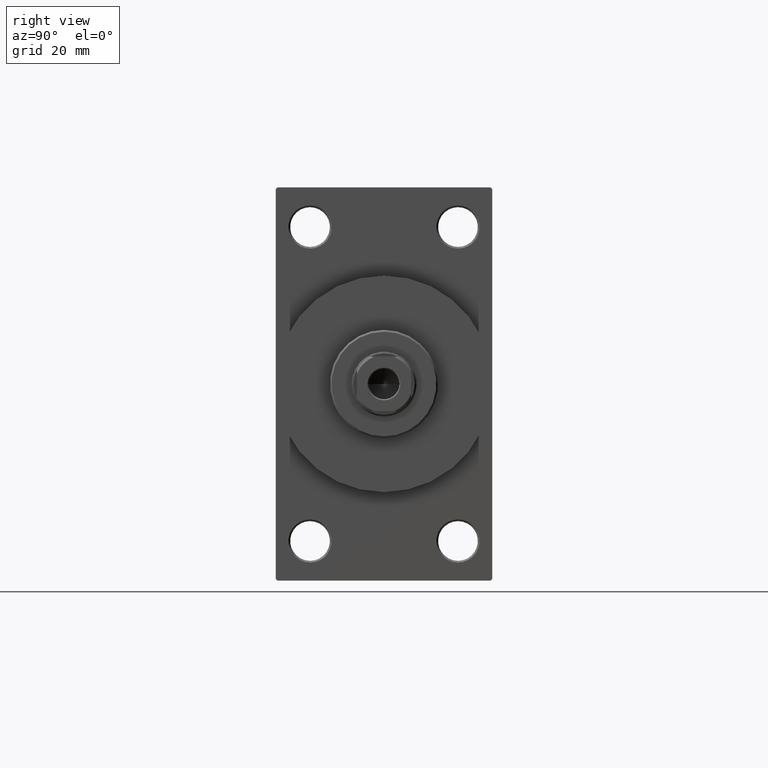
[diagram: clean part render]
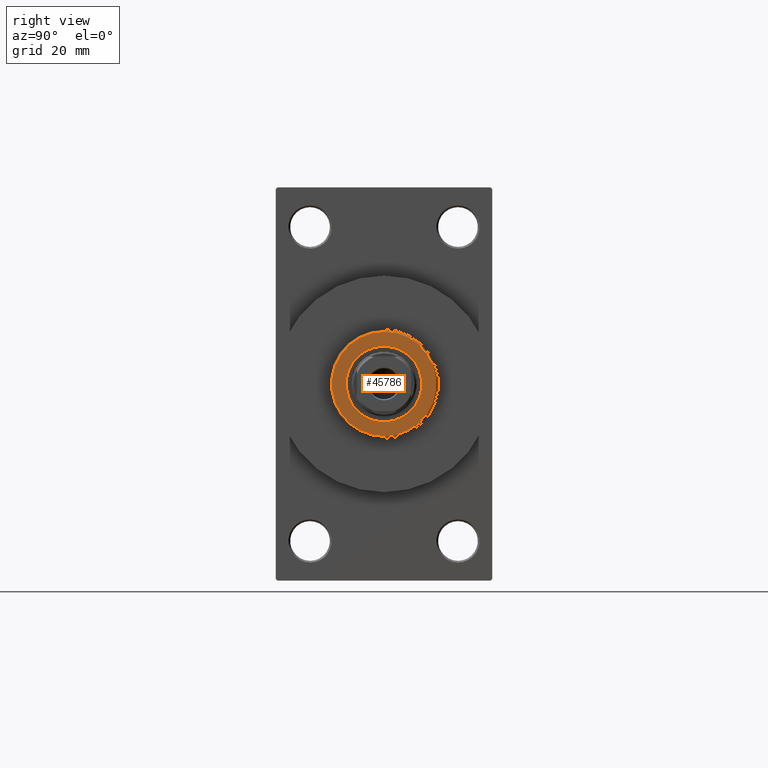
[diagram: same view with one face highlighted and labeled with its STEP entity id]
A machine part, right view. The second image highlights one B-rep face of the part: STEP entity #45786.
In plain terms, the highlighted planar face has unit normal (1, -0, -0).
Its self-contained STEP definition (entity closure, byte-faithful):
#2810 = EDGE_CURVE ( 'NONE', #39837, #24315, #8172, .T. ) ;
#3514 = AXIS2_PLACEMENT_3D ( 'NONE', #29522, #11599, #18764 ) ;
#4503 = CARTESIAN_POINT ( 'NONE',  ( 0.000000000000000000, 0.000000000000000000, 51.25999999999999801 ) ) ;
#5007 = CARTESIAN_POINT ( 'NONE',  ( 14.49999999999999112, 1.806354028742345013E-15, 51.25999999999999801 ) ) ;
#7059 = VERTEX_POINT ( 'NONE', #31945 ) ;
#7854 = DIRECTION ( 'NONE',  ( 0.000000000000000000, 0.000000000000000000, 1.000000000000000000 ) ) ;
#8172 = CIRCLE ( 'NONE', #34905, 10.50000000000000000 ) ;
#9289 = DIRECTION ( 'NONE',  ( 0.000000000000000000, 0.000000000000000000, 1.000000000000000000 ) ) ;
#10517 = AXIS2_PLACEMENT_3D ( 'NONE', #46517, #32661, #46975 ) ;
#11599 = DIRECTION ( 'NONE',  ( 0.000000000000000000, 0.000000000000000000, 1.000000000000000000 ) ) ;
#12818 = CIRCLE ( 'NONE', #10517, 10.50000000000000000 ) ;
#14485 = CARTESIAN_POINT ( 'NONE',  ( 10.50000000000000000, 0.000000000000000000, 51.25999999999999801 ) ) ;
#15970 = CARTESIAN_POINT ( 'NONE',  ( 0.000000000000000000, 0.000000000000000000, 51.25999999999999801 ) ) ;
#16823 = EDGE_LOOP ( 'NONE', ( #22350, #40779 ) ) ;
#18594 = DIRECTION ( 'NONE',  ( 1.000000000000000000, 0.000000000000000000, 0.000000000000000000 ) ) ;
#18764 = DIRECTION ( 'NONE',  ( 1.000000000000000000, 0.000000000000000000, -0.000000000000000000 ) ) ;
#19757 = ORIENTED_EDGE ( 'NONE', *, *, #24240, .F. ) ;
#20294 = EDGE_CURVE ( 'NONE', #7059, #31165, #42450, .T. ) ;
#22350 = ORIENTED_EDGE ( 'NONE', *, *, #20294, .T. ) ;
#23391 = DIRECTION ( 'NONE',  ( 1.000000000000000000, 0.000000000000000000, 0.000000000000000000 ) ) ;
#24240 = EDGE_CURVE ( 'NONE', #24315, #39837, #12818, .T. ) ;
#24315 = VERTEX_POINT ( 'NONE', #14485 ) ;
#27584 = CARTESIAN_POINT ( 'NONE',  ( 0.000000000000000000, 0.000000000000000000, 51.25999999999999801 ) ) ;
#29522 = CARTESIAN_POINT ( 'NONE',  ( 0.000000000000000000, 0.000000000000000000, 51.25999999999999801 ) ) ;
#30097 = CARTESIAN_POINT ( 'NONE',  ( -10.50000000000000000, 1.285879139104720831E-15, 51.25999999999999801 ) ) ;
#31165 = VERTEX_POINT ( 'NONE', #5007 ) ;
#31391 = AXIS2_PLACEMENT_3D ( 'NONE', #4503, #7854, #18594 ) ;
#31945 = CARTESIAN_POINT ( 'NONE',  ( -14.49999999999999112, 0.000000000000000000, 51.25999999999999801 ) ) ;
#32661 = DIRECTION ( 'NONE',  ( 0.000000000000000000, 0.000000000000000000, 1.000000000000000000 ) ) ;
#34007 = ORIENTED_EDGE ( 'NONE', *, *, #2810, .F. ) ;
#34905 = AXIS2_PLACEMENT_3D ( 'NONE', #27584, #38563, #41912 ) ;
#35650 = EDGE_CURVE ( 'NONE', #31165, #7059, #35956, .T. ) ;
#35956 = CIRCLE ( 'NONE', #31391, 14.49999999999999112 ) ;
#36222 = PLANE ( 'NONE',  #3514 ) ;
#38563 = DIRECTION ( 'NONE',  ( 0.000000000000000000, 0.000000000000000000, 1.000000000000000000 ) ) ;
#39837 = VERTEX_POINT ( 'NONE', #30097 ) ;
#40300 = FACE_OUTER_BOUND ( 'NONE', #16823, .T. ) ;
#40779 = ORIENTED_EDGE ( 'NONE', *, *, #35650, .T. ) ;
#40930 = EDGE_LOOP ( 'NONE', ( #19757, #34007 ) ) ;
#41912 = DIRECTION ( 'NONE',  ( 1.000000000000000000, 0.000000000000000000, 0.000000000000000000 ) ) ;
#42450 = CIRCLE ( 'NONE', #43970, 14.49999999999999112 ) ;
#43970 = AXIS2_PLACEMENT_3D ( 'NONE', #15970, #9289, #23391 ) ;
#45786 = ADVANCED_FACE ( 'NONE', ( #47202, #40300 ), #36222, .T. ) ;
#46517 = CARTESIAN_POINT ( 'NONE',  ( 0.000000000000000000, 0.000000000000000000, 51.25999999999999801 ) ) ;
#46975 = DIRECTION ( 'NONE',  ( 1.000000000000000000, 0.000000000000000000, 0.000000000000000000 ) ) ;
#47202 = FACE_BOUND ( 'NONE', #40930, .T. ) ;